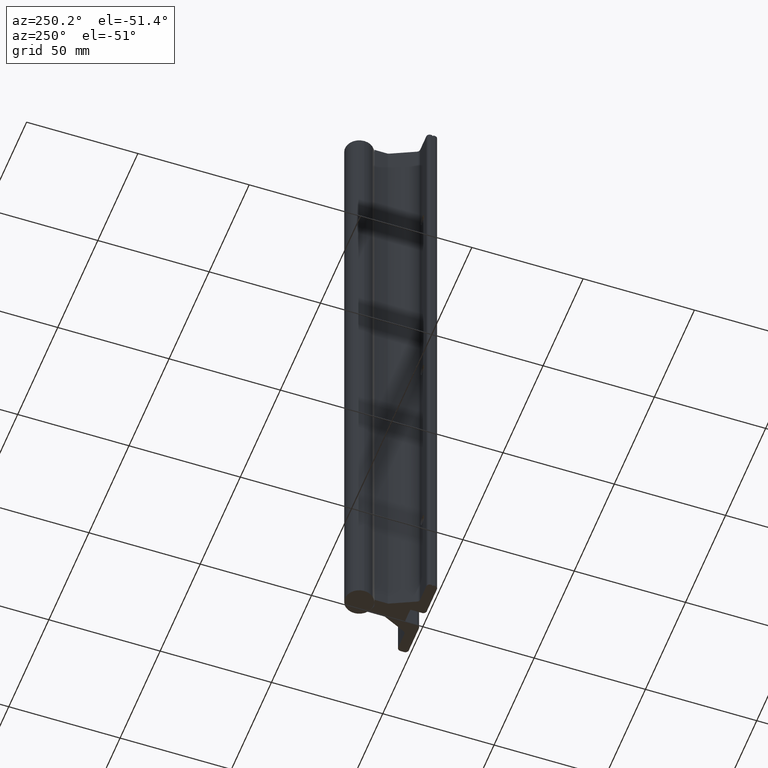
[diagram: clean part render]
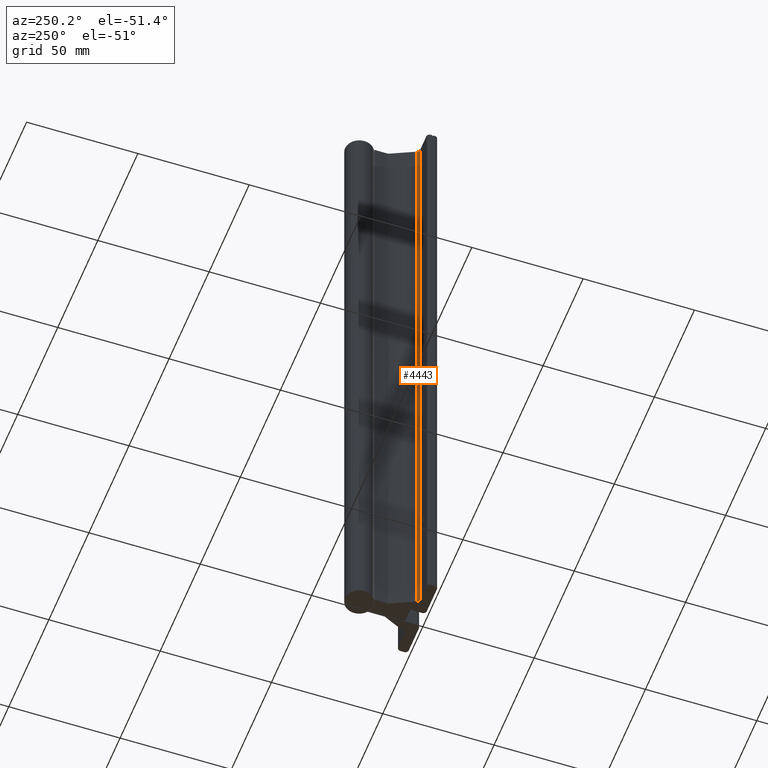
[diagram: same view with one face highlighted and labeled with its STEP entity id]
A machine part, auxiliary view. The second image highlights one B-rep face of the part: STEP entity #4443.
In plain terms, the highlighted cylindrical surface (edge-blend (fillet) strip) has radius 1.524 mm, axis along (0, 0, 1).
Its self-contained STEP definition (entity closure, byte-faithful):
#170 = DIRECTION ( 'NONE',  ( 1.000000000000000000, 0.000000000000000000, 0.000000000000000000 ) ) ;
#290 = CARTESIAN_POINT ( 'NONE',  ( -0.3882242156242674547, 0.2474999999999978051, -12.00000000000000178 ) ) ;
#475 = VERTEX_POINT ( 'NONE', #6193 ) ;
#520 = ORIENTED_EDGE ( 'NONE', *, *, #3993, .F. ) ;
#729 = DIRECTION ( 'NONE',  ( -0.000000000000000000, -0.000000000000000000, -1.000000000000000000 ) ) ;
#1142 = DIRECTION ( 'NONE',  ( 0.000000000000000000, 0.000000000000000000, 1.000000000000000000 ) ) ;
#1521 = FACE_OUTER_BOUND ( 'NONE', #1993, .T. ) ;
#1927 = DIRECTION ( 'NONE',  ( 1.000000000000000000, 0.000000000000000000, 0.000000000000000000 ) ) ;
#1956 = CARTESIAN_POINT ( 'NONE',  ( -0.3338457484000001418, 0.2221429042999998327, -12.00000000000000178 ) ) ;
#1993 = EDGE_LOOP ( 'NONE', ( #6266, #5652, #5974, #520 ) ) ;
#2168 = VERTEX_POINT ( 'NONE', #6192 ) ;
#2372 = CARTESIAN_POINT ( 'NONE',  ( -0.3882242156000000333, 0.1875000000000013600, -13.75252057657289484 ) ) ;
#2460 = AXIS2_PLACEMENT_3D ( 'NONE', #5903, #7738, #4704 ) ;
#2583 = LINE ( 'NONE', #6792, #3811 ) ;
#2633 = VERTEX_POINT ( 'NONE', #6435 ) ;
#2744 = DIRECTION ( 'NONE',  ( 0.000000000000000000, 0.000000000000000000, 1.000000000000000000 ) ) ;
#2925 = AXIS2_PLACEMENT_3D ( 'NONE', #4829, #729, #1927 ) ;
#3107 = CIRCLE ( 'NONE', #4088, 0.05999999999999649364 ) ;
#3358 = VECTOR ( 'NONE', #1142, 39.37007874015748143 ) ;
#3557 = EDGE_CURVE ( 'NONE', #2168, #475, #7696, .T. ) ;
#3803 = CYLINDRICAL_SURFACE ( 'NONE', #2460, 0.05999999999999649364 ) ;
#3811 = VECTOR ( 'NONE', #2744, 39.37007874015748143 ) ;
#3993 = EDGE_CURVE ( 'NONE', #7460, #2168, #2583, .T. ) ;
#4088 = AXIS2_PLACEMENT_3D ( 'NONE', #290, #6850, #170 ) ;
#4443 = ADVANCED_FACE ( 'NONE', ( #1521 ), #3803, .F. ) ;
#4704 = DIRECTION ( 'NONE',  ( 1.000000000000000000, 0.000000000000000000, 0.000000000000000000 ) ) ;
#4829 = CARTESIAN_POINT ( 'NONE',  ( -0.3882242156242674547, 0.2474999999999978051, 0.000000000000000000 ) ) ;
#5264 = EDGE_CURVE ( 'NONE', #2633, #7460, #3107, .T. ) ;
#5289 = EDGE_CURVE ( 'NONE', #2633, #475, #5606, .T. ) ;
#5606 = LINE ( 'NONE', #2372, #3358 ) ;
#5652 = ORIENTED_EDGE ( 'NONE', *, *, #5289, .T. ) ;
#5903 = CARTESIAN_POINT ( 'NONE',  ( -0.3882242156242674547, 0.2474999999999978051, -13.75252057657289484 ) ) ;
#5974 = ORIENTED_EDGE ( 'NONE', *, *, #3557, .F. ) ;
#6192 = CARTESIAN_POINT ( 'NONE',  ( -0.3338457484000001418, 0.2221429042999998049, 0.000000000000000000 ) ) ;
#6193 = CARTESIAN_POINT ( 'NONE',  ( -0.3882242156000000333, 0.1875000000000013600, 0.000000000000000000 ) ) ;
#6266 = ORIENTED_EDGE ( 'NONE', *, *, #5264, .F. ) ;
#6435 = CARTESIAN_POINT ( 'NONE',  ( -0.3882242156000000333, 0.1875000000000013600, -12.00000000000000178 ) ) ;
#6792 = CARTESIAN_POINT ( 'NONE',  ( -0.3338457484000001418, 0.2221429042999998049, -13.75252057657289484 ) ) ;
#6850 = DIRECTION ( 'NONE',  ( 0.000000000000000000, 0.000000000000000000, 1.000000000000000000 ) ) ;
#7460 = VERTEX_POINT ( 'NONE', #1956 ) ;
#7696 = CIRCLE ( 'NONE', #2925, 0.05999999999999649364 ) ;
#7738 = DIRECTION ( 'NONE',  ( 0.000000000000000000, 0.000000000000000000, 1.000000000000000000 ) ) ;